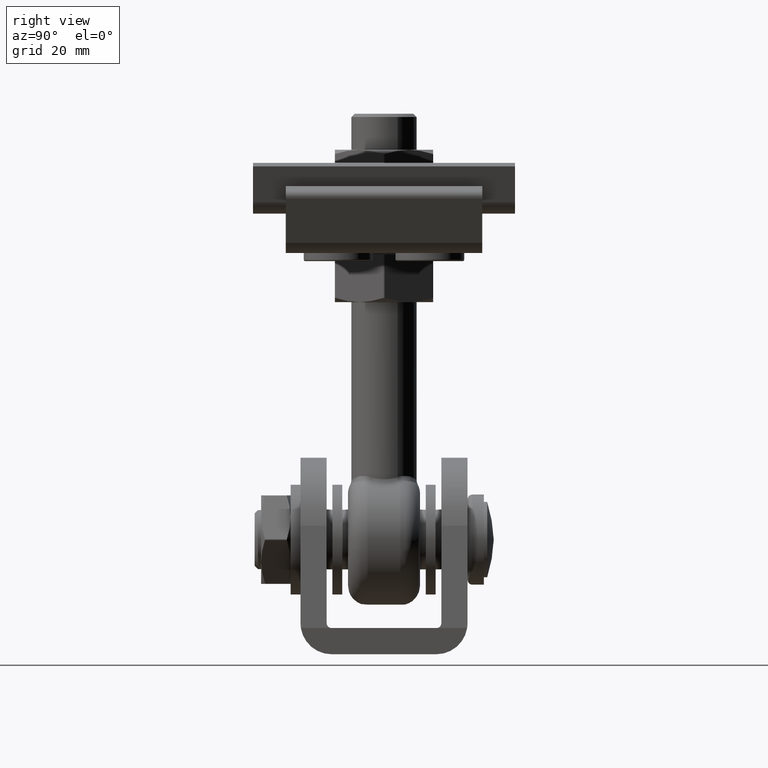
[diagram: clean part render]
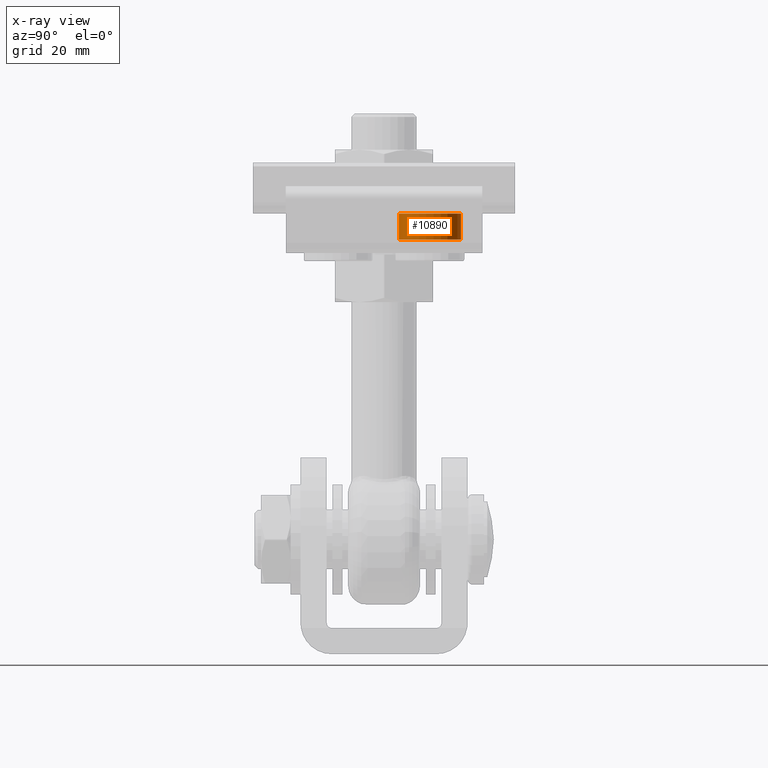
[diagram: x-ray — body ghosted, one internal face saturated and labeled with its STEP entity id]
A machine part, right view, then the same camera in x-ray: the body is ghosted and one INTERNAL B-rep face — a face not visible from any outside direction — is saturated and labeled: STEP entity #10890.
In plain terms, the highlighted cylindrical surface (bore or boss wall) has radius 9.5 mm, axis along (-0, 0, 1).
Its self-contained STEP definition (entity closure, byte-faithful):
#527 = CARTESIAN_POINT ( 'NONE',  ( -38.99999999999999289, 23.49999999999998934, -1.499999999999996225 ) ) ;
#4883 = EDGE_CURVE ( 'NONE', #16137, #16137, #9959, .T. ) ;
#5693 = DIRECTION ( 'NONE',  ( -0.000000000000000000, 1.445602896647338917E-16, -1.000000000000000000 ) ) ;
#5851 = CARTESIAN_POINT ( 'NONE',  ( -38.99999999999999289, 23.49999999999998579, 6.500000000000007994 ) ) ;
#6037 = EDGE_LOOP ( 'NONE', ( #15980 ) ) ;
#8179 = CYLINDRICAL_SURFACE ( 'NONE', #11703, 9.499999999999998224 ) ;
#9088 = DIRECTION ( 'NONE',  ( 0.000000000000000000, 1.000000000000000000, 1.369518533665900065E-16 ) ) ;
#9171 = CARTESIAN_POINT ( 'NONE',  ( -38.99999999999999289, 13.99999999999998757, -1.499999999999998890 ) ) ;
#9589 = DIRECTION ( 'NONE',  ( 0.000000000000000000, 1.000000000000000000, 1.826024711554533667E-16 ) ) ;
#9959 = CIRCLE ( 'NONE', #17953, 9.500000000000001776 ) ;
#10013 = VERTEX_POINT ( 'NONE', #5851 ) ;
#10890 = ADVANCED_FACE ( 'NONE', ( #16920, #17180 ), #8179, .F. ) ;
#11703 = AXIS2_PLACEMENT_3D ( 'NONE', #9171, #19607, #17835 ) ;
#12762 = AXIS2_PLACEMENT_3D ( 'NONE', #14891, #19738, #9589 ) ;
#14891 = CARTESIAN_POINT ( 'NONE',  ( -38.99999999999999289, 13.99999999999998579, 6.500000000000006217 ) ) ;
#15714 = ORIENTED_EDGE ( 'NONE', *, *, #20819, .F. ) ;
#15980 = ORIENTED_EDGE ( 'NONE', *, *, #4883, .T. ) ;
#16137 = VERTEX_POINT ( 'NONE', #527 ) ;
#16920 = FACE_OUTER_BOUND ( 'NONE', #20041, .T. ) ;
#17180 = FACE_OUTER_BOUND ( 'NONE', #6037, .T. ) ;
#17761 = CIRCLE ( 'NONE', #12762, 9.500000000000000000 ) ;
#17835 = DIRECTION ( 'NONE',  ( 0.000000000000000000, 1.000000000000000000, 1.369518533665900558E-16 ) ) ;
#17953 = AXIS2_PLACEMENT_3D ( 'NONE', #20700, #5693, #9088 ) ;
#19607 = DIRECTION ( 'NONE',  ( -0.000000000000000000, 1.445602896647338917E-16, -1.000000000000000000 ) ) ;
#19738 = DIRECTION ( 'NONE',  ( -0.000000000000000000, 1.445602896647338917E-16, -1.000000000000000000 ) ) ;
#20041 = EDGE_LOOP ( 'NONE', ( #15714 ) ) ;
#20700 = CARTESIAN_POINT ( 'NONE',  ( -38.99999999999999289, 13.99999999999998757, -1.499999999999997335 ) ) ;
#20819 = EDGE_CURVE ( 'NONE', #10013, #10013, #17761, .T. ) ;